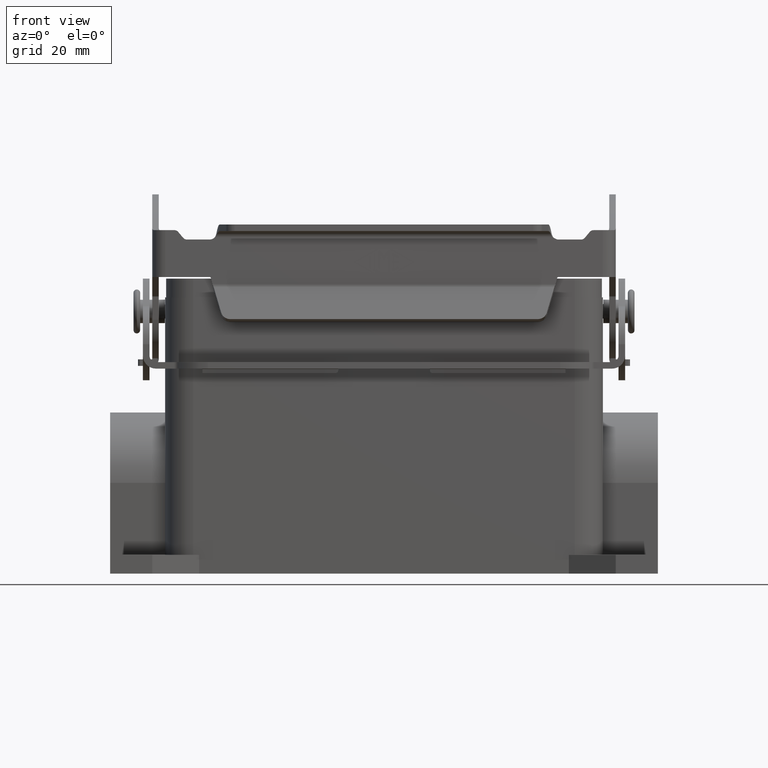
[diagram: clean part render]
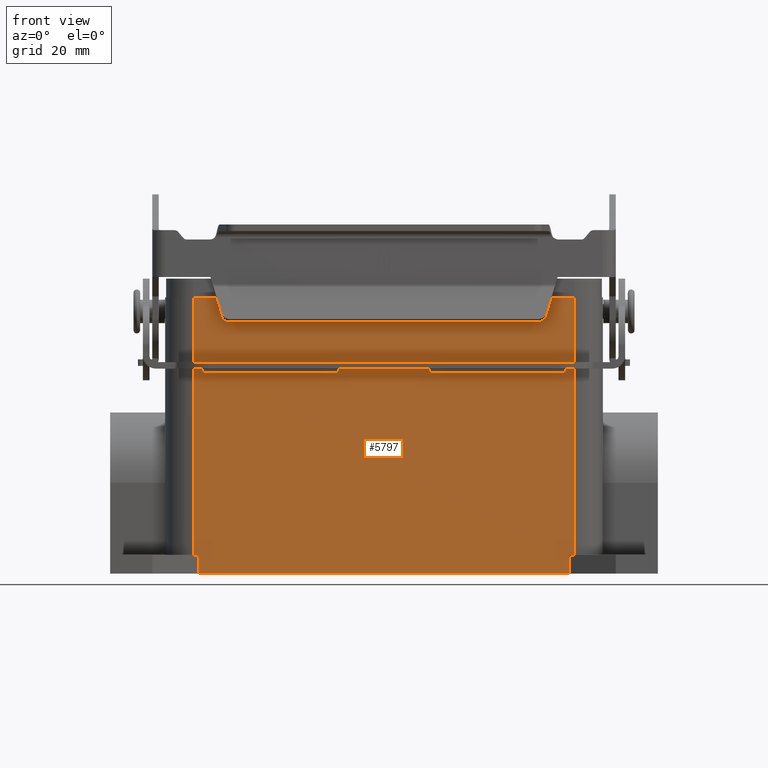
[diagram: same view with one face highlighted and labeled with its STEP entity id]
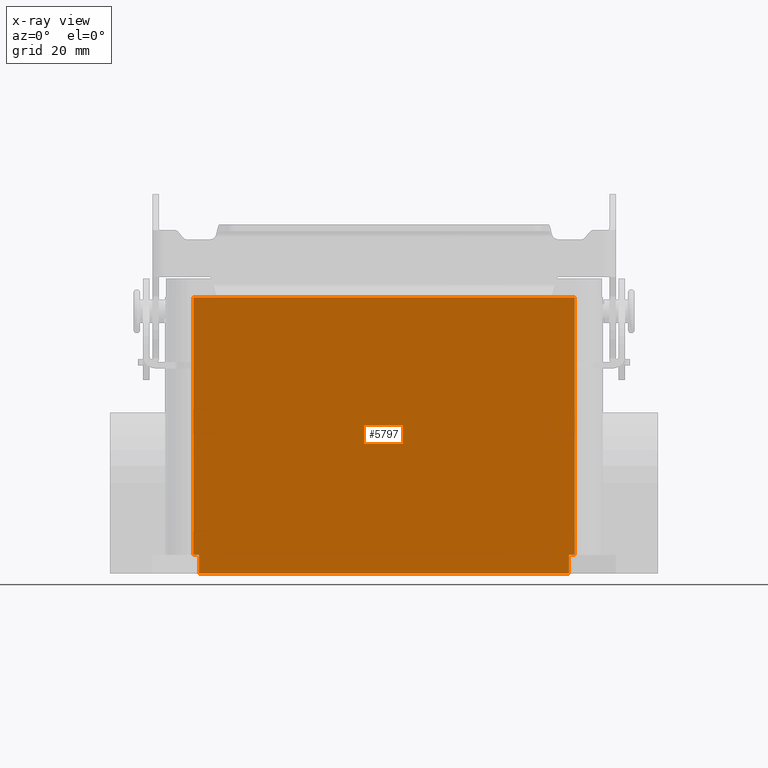
[diagram: x-ray of the same camera — body ghosted, the highlighted face saturated]
A machine part, front view. The second image highlights one B-rep face of the part: STEP entity #5797.
The next image is the same camera in x-ray: the body ghosted, the highlighted face saturated — about 0% of this face is hidden behind the body in this view.
In plain terms, the highlighted planar face has unit normal (0, -1, 0).
Its self-contained STEP definition (entity closure, byte-faithful):
#2451=CARTESIAN_POINT('',(39.500000000000000,-22.250000000000000,-56.000000000000007));
#2452=VERTEX_POINT('',#2451);
#2459=CARTESIAN_POINT('',(-39.500000000000000,-22.250000000000000,-56.000000000000007));
#2460=VERTEX_POINT('',#2459);
#2461=CARTESIAN_POINT('',(39.500000000000000,-22.250000000000000,-56.000000000000007));
#2462=DIRECTION('',(-1.0,0.0,0.0));
#2463=VECTOR('',#2462,79.0);
#2464=LINE('',#2461,#2463);
#2465=EDGE_CURVE('',#2452,#2460,#2464,.T.);
#2612=CARTESIAN_POINT('',(-39.500000000000000,-22.250000000000000,-52.000000000000014));
#2613=VERTEX_POINT('',#2612);
#2620=CARTESIAN_POINT('',(-40.750000000000014,-22.249999999999993,-52.000000000000014));
#2621=VERTEX_POINT('',#2620);
#2622=CARTESIAN_POINT('',(-39.500000000000000,-22.250000000000000,-52.000000000000014));
#2623=DIRECTION('',(-1.0,0.0,0.0));
#2624=VECTOR('',#2623,1.250000000000014);
#2625=LINE('',#2622,#2624);
#2626=EDGE_CURVE('',#2613,#2621,#2625,.T.);
#2922=CARTESIAN_POINT('',(40.750000000000014,-22.249999999999993,-52.000000000000014));
#2923=VERTEX_POINT('',#2922);
#2931=CARTESIAN_POINT('',(39.500000000000000,-22.250000000000000,-52.000000000000014));
#2932=VERTEX_POINT('',#2931);
#2933=CARTESIAN_POINT('',(40.750000000000014,-22.249999999999993,-52.000000000000014));
#2934=DIRECTION('',(-1.0,0.0,0.0));
#2935=VECTOR('',#2934,1.250000000000014);
#2936=LINE('',#2933,#2935);
#2937=EDGE_CURVE('',#2923,#2932,#2936,.T.);
#5501=CARTESIAN_POINT('',(-40.750000000000014,-22.249999999999993,2.999999999999989));
#5502=VERTEX_POINT('',#5501);
#5503=CARTESIAN_POINT('',(-40.750000000000014,-22.249999999999993,-52.000000000000014));
#5504=DIRECTION('',(0.0,0.0,1.0));
#5505=VECTOR('',#5504,55.0);
#5506=LINE('',#5503,#5505);
#5507=EDGE_CURVE('',#2621,#5502,#5506,.T.);
#5552=CARTESIAN_POINT('',(40.750000000000014,-22.249999999999993,2.999999999999989));
#5553=VERTEX_POINT('',#5552);
#5561=CARTESIAN_POINT('',(40.750000000000014,-22.249999999999993,-52.000000000000014));
#5562=DIRECTION('',(0.0,0.0,1.0));
#5563=VECTOR('',#5562,55.0);
#5564=LINE('',#5561,#5563);
#5565=EDGE_CURVE('',#2923,#5553,#5564,.T.);
#5584=CARTESIAN_POINT('',(40.750000000000014,-22.249999999999993,2.999999999999989));
#5585=DIRECTION('',(-1.0,0.0,0.0));
#5586=VECTOR('',#5585,81.500000000000028);
#5587=LINE('',#5584,#5586);
#5588=EDGE_CURVE('',#5553,#5502,#5587,.T.);
#5766=CARTESIAN_POINT('',(39.500000000000000,-22.250000000000000,-56.000000000000007));
#5767=DIRECTION('',(0.0,0.0,1.0));
#5768=VECTOR('',#5767,3.999999999999993);
#5769=LINE('',#5766,#5768);
#5770=EDGE_CURVE('',#2452,#2932,#5769,.T.);
#5777=CARTESIAN_POINT('',(39.500000000000000,-22.250000000000000,-56.000000000000007));
#5778=DIRECTION('',(0.0,-1.0,0.0));
#5779=DIRECTION('',(0.0,0.0,-1.0));
#5780=AXIS2_PLACEMENT_3D('',#5777,#5778,#5779);
#5781=PLANE('',#5780);
#5782=CARTESIAN_POINT('',(-39.500000000000000,-22.250000000000000,-56.000000000000007));
#5783=DIRECTION('',(0.0,0.0,1.0));
#5784=VECTOR('',#5783,3.999999999999993);
#5785=LINE('',#5782,#5784);
#5786=EDGE_CURVE('',#2460,#2613,#5785,.T.);
#5787=ORIENTED_EDGE('',*,*,#5786,.F.);
#5788=ORIENTED_EDGE('',*,*,#2465,.F.);
#5789=ORIENTED_EDGE('',*,*,#5770,.T.);
#5790=ORIENTED_EDGE('',*,*,#2937,.F.);
#5791=ORIENTED_EDGE('',*,*,#5565,.T.);
#5792=ORIENTED_EDGE('',*,*,#5588,.T.);
#5793=ORIENTED_EDGE('',*,*,#5507,.F.);
#5794=ORIENTED_EDGE('',*,*,#2626,.F.);
#5795=EDGE_LOOP('',(#5787,#5788,#5789,#5790,#5791,#5792,#5793,#5794));
#5796=FACE_OUTER_BOUND('',#5795,.T.);
#5797=ADVANCED_FACE('',(#5796),#5781,.T.);